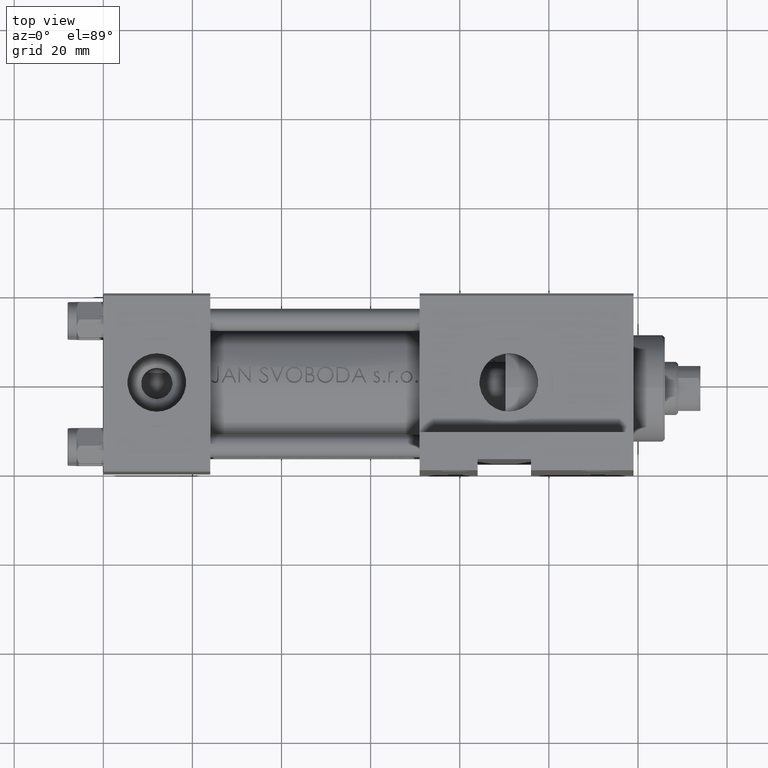
[diagram: clean part render]
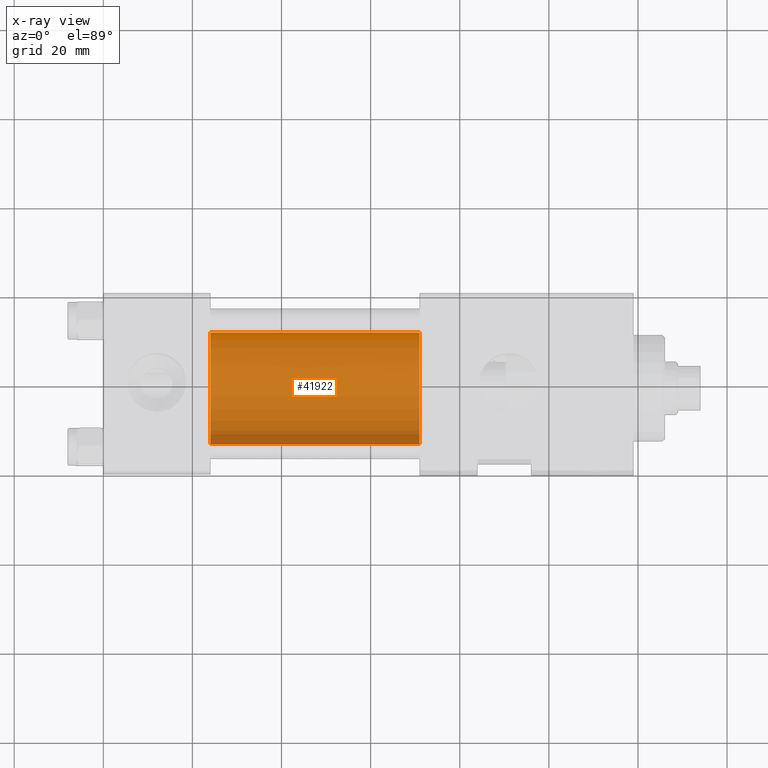
[diagram: x-ray — body ghosted, one internal face saturated and labeled with its STEP entity id]
A machine part, top view, then the same camera in x-ray: the body is ghosted and one INTERNAL B-rep face — a face not visible from any outside direction — is saturated and labeled: STEP entity #41922.
In plain terms, the highlighted cylindrical surface (partial cylindrical patch) has radius 12.5 mm, axis along (-1, -0, 0).
Its self-contained STEP definition (entity closure, byte-faithful):
#885 = VECTOR ( 'NONE', #46386, 1000.000000000000000 ) ;
#1383 = CARTESIAN_POINT ( 'NONE',  ( 71.00000000000001421, 0.000000000000000000, -1.000000000000007772 ) ) ;
#1561 = DIRECTION ( 'NONE',  ( -1.000000000000000000, -0.000000000000000000, -0.000000000000000000 ) ) ;
#2416 = DIRECTION ( 'NONE',  ( 1.000000000000000000, 0.000000000000000000, 0.000000000000000000 ) ) ;
#2941 = VERTEX_POINT ( 'NONE', #33579 ) ;
#4101 = CARTESIAN_POINT ( 'NONE',  ( 71.00000000000001421, 0.000000000000000000, -1.000000000000007772 ) ) ;
#10849 = EDGE_LOOP ( 'NONE', ( #45166, #41243, #29735, #15710 ) ) ;
#12320 = VERTEX_POINT ( 'NONE', #23380 ) ;
#14023 = EDGE_CURVE ( 'NONE', #28897, #2941, #19691, .T. ) ;
#15710 = ORIENTED_EDGE ( 'NONE', *, *, #40233, .F. ) ;
#17244 = CARTESIAN_POINT ( 'NONE',  ( 71.00000000000001421, 0.000000000000000000, 11.49999999999998934 ) ) ;
#19307 = DIRECTION ( 'NONE',  ( 0.000000000000000000, 0.000000000000000000, 1.000000000000000000 ) ) ;
#19691 = LINE ( 'NONE', #34915, #885 ) ;
#22503 = DIRECTION ( 'NONE',  ( 0.000000000000000000, 0.000000000000000000, -1.000000000000000000 ) ) ;
#22575 = DIRECTION ( 'NONE',  ( -1.000000000000000000, -0.000000000000000000, -0.000000000000000000 ) ) ;
#23380 = CARTESIAN_POINT ( 'NONE',  ( 24.00000000000000000, 0.000000000000000000, 11.49999999999998934 ) ) ;
#25646 = AXIS2_PLACEMENT_3D ( 'NONE', #44080, #2416, #48821 ) ;
#28897 = VERTEX_POINT ( 'NONE', #39049 ) ;
#28947 = EDGE_CURVE ( 'NONE', #28897, #39800, #29682, .T. ) ;
#29682 = CIRCLE ( 'NONE', #32057, 12.49999999999999645 ) ;
#29735 = ORIENTED_EDGE ( 'NONE', *, *, #46164, .T. ) ;
#29812 = FACE_OUTER_BOUND ( 'NONE', #10849, .T. ) ;
#30303 = CYLINDRICAL_SURFACE ( 'NONE', #38448, 12.49999999999999645 ) ;
#31192 = CIRCLE ( 'NONE', #25646, 12.49999999999999645 ) ;
#32057 = AXIS2_PLACEMENT_3D ( 'NONE', #1383, #33984, #22503 ) ;
#32237 = LINE ( 'NONE', #17244, #41772 ) ;
#33579 = CARTESIAN_POINT ( 'NONE',  ( 24.00000000000000000, 1.530808498934191127E-15, -13.50000000000000533 ) ) ;
#33984 = DIRECTION ( 'NONE',  ( 1.000000000000000000, 0.000000000000000000, 0.000000000000000000 ) ) ;
#34915 = CARTESIAN_POINT ( 'NONE',  ( 71.00000000000001421, 1.530808498934191127E-15, -13.50000000000000533 ) ) ;
#35424 = CARTESIAN_POINT ( 'NONE',  ( 71.00000000000001421, 0.000000000000000000, 11.49999999999998934 ) ) ;
#38448 = AXIS2_PLACEMENT_3D ( 'NONE', #4101, #22575, #19307 ) ;
#39049 = CARTESIAN_POINT ( 'NONE',  ( 71.00000000000001421, 1.530808498934191127E-15, -13.50000000000000533 ) ) ;
#39800 = VERTEX_POINT ( 'NONE', #35424 ) ;
#40233 = EDGE_CURVE ( 'NONE', #2941, #12320, #31192, .T. ) ;
#41243 = ORIENTED_EDGE ( 'NONE', *, *, #28947, .T. ) ;
#41772 = VECTOR ( 'NONE', #1561, 1000.000000000000000 ) ;
#41922 = ADVANCED_FACE ( 'NONE', ( #29812 ), #30303, .F. ) ;
#44080 = CARTESIAN_POINT ( 'NONE',  ( 24.00000000000000000, 0.000000000000000000, -1.000000000000007772 ) ) ;
#45166 = ORIENTED_EDGE ( 'NONE', *, *, #14023, .F. ) ;
#46164 = EDGE_CURVE ( 'NONE', #39800, #12320, #32237, .T. ) ;
#46386 = DIRECTION ( 'NONE',  ( -1.000000000000000000, -0.000000000000000000, -0.000000000000000000 ) ) ;
#48821 = DIRECTION ( 'NONE',  ( 0.000000000000000000, 0.000000000000000000, -1.000000000000000000 ) ) ;